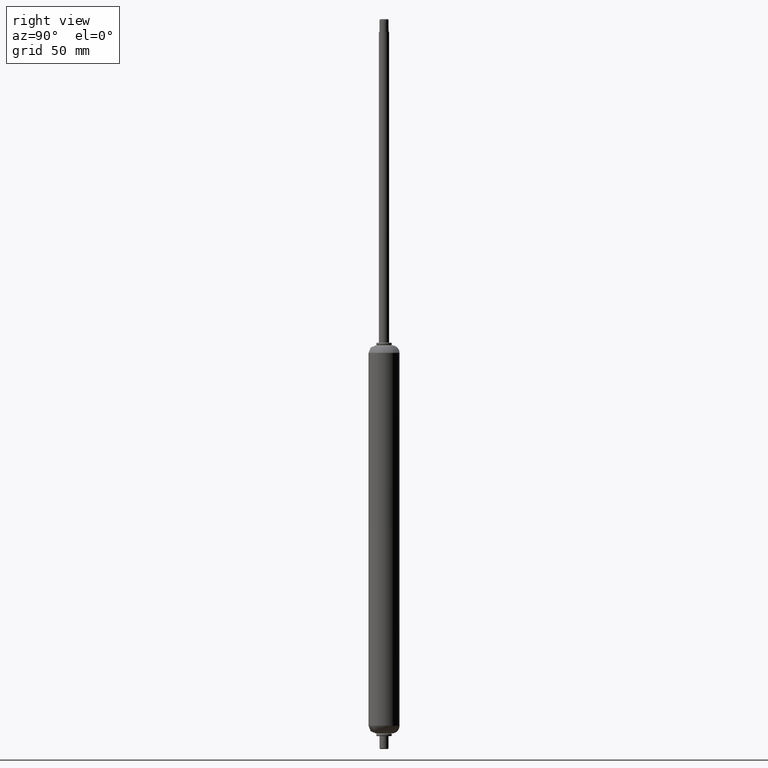
[diagram: clean part render]
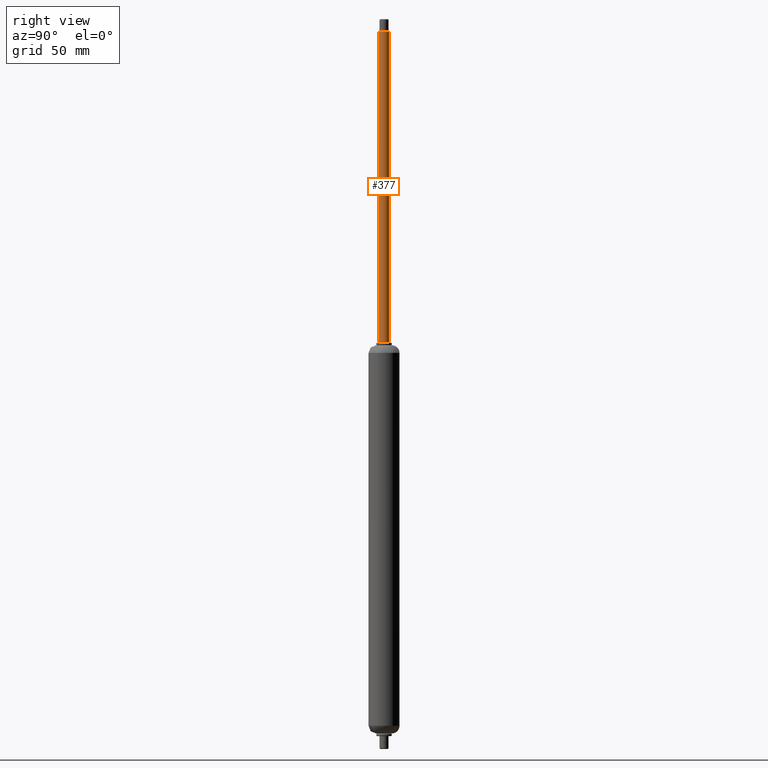
[diagram: same view with one face highlighted and labeled with its STEP entity id]
A machine part, right view. The second image highlights one B-rep face of the part: STEP entity #377.
In plain terms, the highlighted face is a freeform B-spline surface patch.
Its self-contained STEP definition (entity closure, byte-faithful):
#275=CARTESIAN_POINT('',(-0.236068469313235,1.986019052726692,124.000000000000100));
#276=CARTESIAN_POINT('',(-0.179229457275692,1.992775230896569,124.000000000000030));
#277=CARTESIAN_POINT('',(-0.122097079069469,1.996269596843090,124.0));
#278=CARTESIAN_POINT('',(1.874172517773621,2.118366675912764,124.000000000000030));
#279=CARTESIAN_POINT('',(1.996269596843296,0.122097079069675,124.0));
#280=CARTESIAN_POINT('',(2.118366675912971,-1.874172517773415,124.000000000000030));
#281=CARTESIAN_POINT('',(0.122097079069881,-1.996269596843090,124.0));
#282=CARTESIAN_POINT('',(-0.236068469313235,1.986019052726692,-2.075000000000003));
#283=CARTESIAN_POINT('',(-0.179229457275692,1.992775230896569,-2.075000000000003));
#284=CARTESIAN_POINT('',(-0.122097079069469,1.996269596843090,-2.075000000000003));
#285=CARTESIAN_POINT('',(1.874172517773621,2.118366675912764,-2.075000000000003));
#286=CARTESIAN_POINT('',(1.996269596843296,0.122097079069675,-2.075000000000003));
#287=CARTESIAN_POINT('',(2.118366675912971,-1.874172517773415,-2.075000000000003));
#288=CARTESIAN_POINT('',(0.122097079069881,-1.996269596843090,-2.075000000000003));
#296=(BOUNDED_SURFACE()B_SPLINE_SURFACE(2,1,((#275,#282),(#276,#283),(#277,#284),(#278,#285),(#279,#286),(#280,#287),(#281,#288)),.UNSPECIFIED.,.F.,.F.,.U.)B_SPLINE_SURFACE_WITH_KNOTS((3,2,2,3),(2,2),(0.0,0.132548339959348,3.446256838943039,6.759965337926730),(0.0,126.075000000000100),.UNSPECIFIED.)GEOMETRIC_REPRESENTATION_ITEM()RATIONAL_B_SPLINE_SURFACE(((0.977505800795127,0.977505800795127),(0.988284271247462,0.988284271247462),(1.0,1.0),(0.707106781186548,0.707106781186548),(1.0,1.0),(0.707106781186548,0.707106781186548),(1.0,1.0)))REPRESENTATION_ITEM('')SURFACE());
#297=CARTESIAN_POINT('',(-0.236068470265785,1.986019052613468,0.999999999999993));
#298=VERTEX_POINT('',#297);
#299=CARTESIAN_POINT('',(1.999999999999561,0.0,1.0));
#300=VERTEX_POINT('',#299);
#301=CARTESIAN_POINT('',(-0.236068470265785,1.986019052613467,0.999999999999993));
#302=CARTESIAN_POINT('',(-0.118448240266196,1.999999999999355,1.0));
#303=CARTESIAN_POINT('',(2.060574E-013,1.999999999999355,1.0));
#304=CARTESIAN_POINT('',(1.999999999999561,1.999999999999355,1.0));
#305=CARTESIAN_POINT('',(1.999999999999561,0.0,1.0));
#313=(BOUNDED_CURVE()B_SPLINE_CURVE(2,(#301,#302,#303,#304,#305),.UNSPECIFIED.,.F.,.U.)B_SPLINE_CURVE_WITH_KNOTS((3,2,3),(0.229562473353527,0.250000000000000,0.500000000000000),.UNSPECIFIED.)CURVE()GEOMETRIC_REPRESENTATION_ITEM()RATIONAL_B_SPLINE_CURVE((0.956026753870129,0.976055948143715,1.0,0.707106781186548,1.0))REPRESENTATION_ITEM(''));
#314=EDGE_CURVE('',#298,#300,#313,.T.);
#315=ORIENTED_EDGE('',*,*,#314,.F.);
#316=CARTESIAN_POINT('',(-0.236068470265786,1.986019052613468,121.0));
#317=VERTEX_POINT('',#316);
#318=CARTESIAN_POINT('',(-0.236068470265786,1.986019052613468,121.0));
#319=CARTESIAN_POINT('',(-0.236068470265785,1.986019052613468,0.999999999999993));
#320=QUASI_UNIFORM_CURVE('',1,(#318,#319),.UNSPECIFIED.,.F.,.U.);
#321=EDGE_CURVE('',#317,#298,#320,.T.);
#322=ORIENTED_EDGE('',*,*,#321,.F.);
#323=CARTESIAN_POINT('',(1.999999999999561,0.0,121.0));
#324=VERTEX_POINT('',#323);
#325=CARTESIAN_POINT('',(-0.236068470265786,1.986019052613468,121.000000000000010));
#326=CARTESIAN_POINT('',(-0.118448240266197,1.999999999999356,121.0));
#327=CARTESIAN_POINT('',(2.060574E-013,1.999999999999355,121.0));
#328=CARTESIAN_POINT('',(1.999999999999561,1.999999999999355,121.0));
#329=CARTESIAN_POINT('',(1.999999999999561,0.0,121.0));
#337=(BOUNDED_CURVE()B_SPLINE_CURVE(2,(#325,#326,#327,#328,#329),.UNSPECIFIED.,.F.,.U.)B_SPLINE_CURVE_WITH_KNOTS((3,2,3),(0.229562473353527,0.250000000000000,0.500000000000000),.UNSPECIFIED.)CURVE()GEOMETRIC_REPRESENTATION_ITEM()RATIONAL_B_SPLINE_CURVE((0.956026753870129,0.976055948143715,1.0,0.707106781186548,1.0))REPRESENTATION_ITEM(''));
#338=EDGE_CURVE('',#317,#324,#337,.T.);
#339=ORIENTED_EDGE('',*,*,#338,.T.);
#340=CARTESIAN_POINT('',(0.122097082924850,-1.996269596607310,121.0));
#341=VERTEX_POINT('',#340);
#342=CARTESIAN_POINT('',(1.999999999999561,0.0,121.0));
#343=CARTESIAN_POINT('',(1.999999999999561,-1.881412126530861,121.0));
#344=CARTESIAN_POINT('',(0.122097082924850,-1.996269596607310,120.999999999999990));
#352=(BOUNDED_CURVE()B_SPLINE_CURVE(2,(#342,#343,#344),.UNSPECIFIED.,.F.,.U.)B_SPLINE_CURVE_WITH_KNOTS((3,3),(0.500000000000000,0.739332961575562),.UNSPECIFIED.)CURVE()GEOMETRIC_REPRESENTATION_ITEM()RATIONAL_B_SPLINE_CURVE((1.0,0.719603994063909,0.976072040244967))REPRESENTATION_ITEM(''));
#353=EDGE_CURVE('',#324,#341,#352,.T.);
#354=ORIENTED_EDGE('',*,*,#353,.T.);
#355=CARTESIAN_POINT('',(0.122097082924846,-1.996269596607310,0.999999999999993));
#356=VERTEX_POINT('',#355);
#357=CARTESIAN_POINT('',(0.122097082924850,-1.996269596607310,121.0));
#358=CARTESIAN_POINT('',(0.122097082924846,-1.996269596607310,0.999999999999993));
#359=QUASI_UNIFORM_CURVE('',1,(#357,#358),.UNSPECIFIED.,.F.,.U.);
#360=EDGE_CURVE('',#341,#356,#359,.T.);
#361=ORIENTED_EDGE('',*,*,#360,.T.);
#362=CARTESIAN_POINT('',(1.999999999999561,0.0,1.0));
#363=CARTESIAN_POINT('',(1.999999999999561,-1.881412126530861,1.0));
#364=CARTESIAN_POINT('',(0.122097082924846,-1.996269596607311,0.999999999999993));
#372=(BOUNDED_CURVE()B_SPLINE_CURVE(2,(#362,#363,#364),.UNSPECIFIED.,.F.,.U.)B_SPLINE_CURVE_WITH_KNOTS((3,3),(0.500000000000000,0.739332961575562),.UNSPECIFIED.)CURVE()GEOMETRIC_REPRESENTATION_ITEM()RATIONAL_B_SPLINE_CURVE((1.0,0.719603994063909,0.976072040244967))REPRESENTATION_ITEM(''));
#373=EDGE_CURVE('',#300,#356,#372,.T.);
#374=ORIENTED_EDGE('',*,*,#373,.F.);
#375=EDGE_LOOP('',(#315,#322,#339,#354,#361,#374));
#376=FACE_OUTER_BOUND('',#375,.T.);
#377=ADVANCED_FACE('',(#376),#296,.T.);